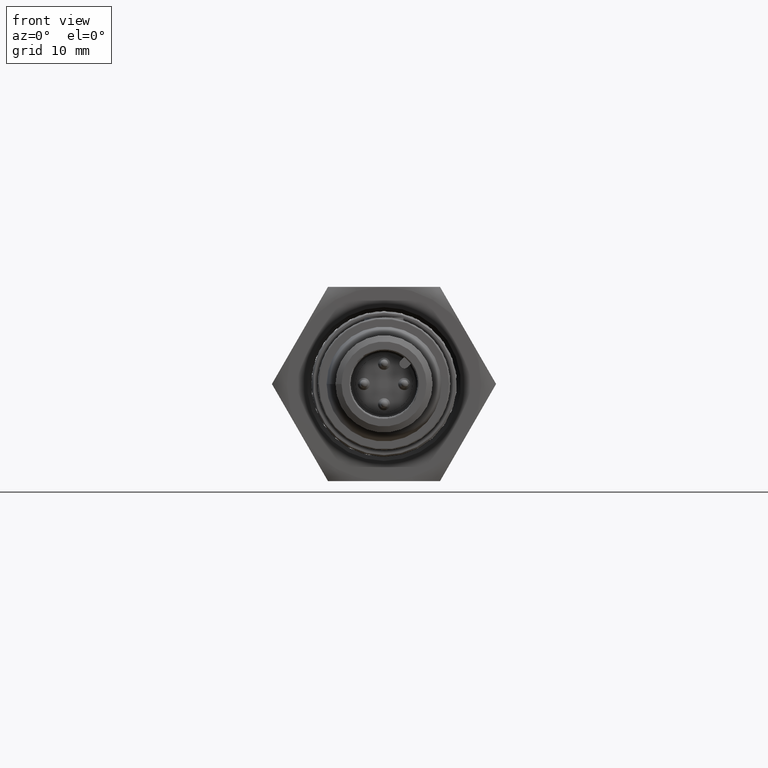
[diagram: clean part render]
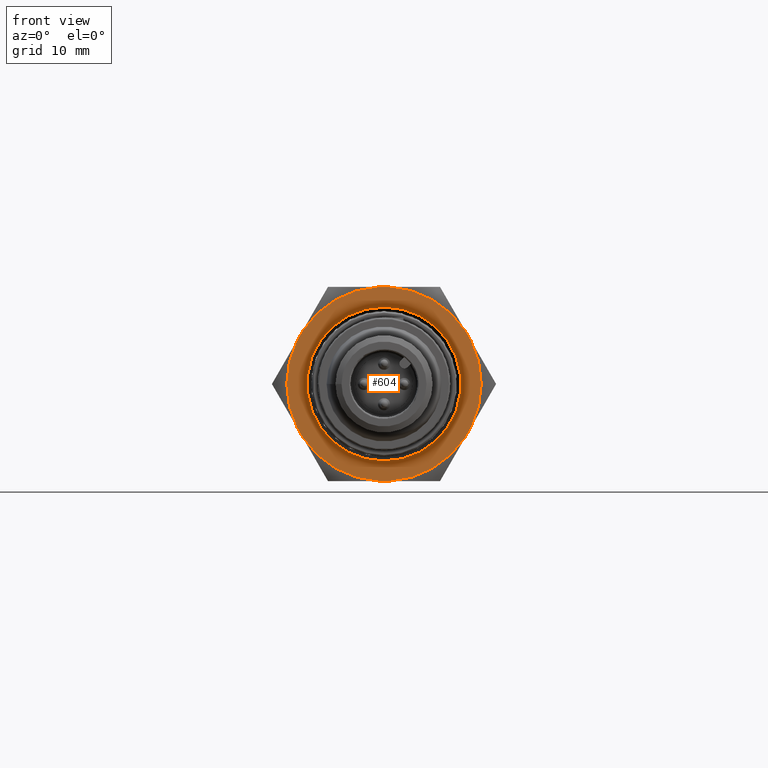
[diagram: same view with one face highlighted and labeled with its STEP entity id]
A machine part, front view. The second image highlights one B-rep face of the part: STEP entity #604.
In plain terms, the highlighted planar face has unit normal (0, -1, 0).
Its self-contained STEP definition (entity closure, byte-faithful):
#9 = DIRECTION ( 'NONE',  ( 0.000000000000000000, 0.000000000000000000, -1.000000000000000000 ) ) ;
#32 = LINE ( 'NONE', #1390, #407 ) ;
#61 = CARTESIAN_POINT ( 'NONE',  ( -0.2727639067037574971, 0.2687413502345897820, 0.4690084778756850592 ) ) ;
#62 = LINE ( 'NONE', #1418, #2949 ) ;
#166 = VERTEX_POINT ( 'NONE', #1652 ) ;
#222 = AXIS2_PLACEMENT_3D ( 'NONE', #833, #3932, #3253 ) ;
#225 = ORIENTED_EDGE ( 'NONE', *, *, #4373, .T. ) ;
#326 = DIRECTION ( 'NONE',  ( 0.000000000000000000, -1.000000000000000000, 0.000000000000000000 ) ) ;
#333 = EDGE_CURVE ( 'NONE', #3655, #2803, #62, .T. ) ;
#407 = VECTOR ( 'NONE', #3073, 39.37007874015748854 ) ;
#446 = CARTESIAN_POINT ( 'NONE',  ( -0.3963061059273504383, 0.2687413502345897820, -0.2618920459540358125 ) ) ;
#487 = VERTEX_POINT ( 'NONE', #4270 ) ;
#554 = DIRECTION ( 'NONE',  ( 0.000000000000000000, -1.000000000000000000, 0.000000000000000000 ) ) ;
#579 = CARTESIAN_POINT ( 'NONE',  ( 0.02567950825657693004, 0.2687413502345897820, 0.4690084778756850592 ) ) ;
#604 = ADVANCED_FACE ( 'NONE', ( #1841, #1173 ), #2552, .T. ) ;
#614 = VERTEX_POINT ( 'NONE', #3604 ) ;
#624 = EDGE_CURVE ( 'NONE', #2329, #3676, #3098, .T. ) ;
#651 = VERTEX_POINT ( 'NONE', #2510 ) ;
#686 = EDGE_CURVE ( 'NONE', #2803, #2834, #1945, .T. ) ;
#706 = EDGE_CURVE ( 'NONE', #2863, #2545, #2525, .T. ) ;
#754 = DIRECTION ( 'NONE',  ( 0.000000000000000000, -1.000000000000000000, 0.000000000000000000 ) ) ;
#782 = CARTESIAN_POINT ( 'NONE',  ( -0.5455278134075173258, 0.2687413502345897820, -0.003432467006205425306 ) ) ;
#784 = CARTESIAN_POINT ( 'NONE',  ( -0.4219856141839251618, 0.2687413502345897820, -0.2174138329402645620 ) ) ;
#801 = CARTESIAN_POINT ( 'NONE',  ( 0.3963061059273583209, 0.2687413502345897820, 0.2550271119416216425 ) ) ;
#806 = DIRECTION ( 'NONE',  ( 0.4999999999999998335, 0.000000000000000000, -0.8660254037844385966 ) ) ;
#833 = CARTESIAN_POINT ( 'NONE',  ( 2.648897484147870251E-15, 0.2687413502345897820, -0.003432467006205425306 ) ) ;
#854 = ORIENTED_EDGE ( 'NONE', *, *, #3328, .T. ) ;
#869 = DIRECTION ( 'NONE',  ( 0.000000000000000000, 0.000000000000000000, -1.000000000000000000 ) ) ;
#892 = CARTESIAN_POINT ( 'NONE',  ( 2.648897484147870251E-15, 0.2687413502345897820, -0.003432467006205425306 ) ) ;
#893 = ORIENTED_EDGE ( 'NONE', *, *, #686, .T. ) ;
#960 = EDGE_CURVE ( 'NONE', #2430, #2863, #1100, .T. ) ;
#1085 = EDGE_CURVE ( 'NONE', #487, #2430, #3258, .T. ) ;
#1100 = LINE ( 'NONE', #782, #3833 ) ;
#1173 = FACE_OUTER_BOUND ( 'NONE', #3949, .T. ) ;
#1214 = LINE ( 'NONE', #2908, #1898 ) ;
#1242 = VERTEX_POINT ( 'NONE', #2622 ) ;
#1258 = CARTESIAN_POINT ( 'NONE',  ( -0.02567950825657815128, 0.2687413502345897820, -0.4758734118880952879 ) ) ;
#1295 = DIRECTION ( 'NONE',  ( 0.000000000000000000, 0.000000000000000000, -1.000000000000000000 ) ) ;
#1297 = CARTESIAN_POINT ( 'NONE',  ( 0.4219856141839291586, 0.2687413502345897820, -0.2174138329402669212 ) ) ;
#1304 = ORIENTED_EDGE ( 'NONE', *, *, #1085, .T. ) ;
#1325 = ORIENTED_EDGE ( 'NONE', *, *, #2283, .T. ) ;
#1390 = CARTESIAN_POINT ( 'NONE',  ( 0.5455278134075236540, 0.2687413502345897820, -0.003432467006205287829 ) ) ;
#1414 = DIRECTION ( 'NONE',  ( 0.000000000000000000, 0.000000000000000000, -1.000000000000000000 ) ) ;
#1417 = DIRECTION ( 'NONE',  ( -0.4999999999999998335, 0.000000000000000000, -0.8660254037844385966 ) ) ;
#1418 = CARTESIAN_POINT ( 'NONE',  ( 0.2727639067037633813, 0.2687413502345897820, -0.4758734118880952879 ) ) ;
#1434 = DIRECTION ( 'NONE',  ( -1.000000000000000000, 0.000000000000000000, 0.000000000000000000 ) ) ;
#1442 = ORIENTED_EDGE ( 'NONE', *, *, #3480, .T. ) ;
#1549 = DIRECTION ( 'NONE',  ( 0.000000000000000000, -1.000000000000000000, 0.000000000000000000 ) ) ;
#1561 = AXIS2_PLACEMENT_3D ( 'NONE', #1795, #2147, #2878 ) ;
#1644 = CARTESIAN_POINT ( 'NONE',  ( 0.3963061059273575437, 0.2687413502345897820, -0.2618920459540338697 ) ) ;
#1652 = CARTESIAN_POINT ( 'NONE',  ( -0.3963061059273488840, 0.2687413502345897820, 0.2550271119416279708 ) ) ;
#1678 = AXIS2_PLACEMENT_3D ( 'NONE', #1745, #754, #3545 ) ;
#1745 = CARTESIAN_POINT ( 'NONE',  ( 2.648897484147870251E-15, 0.2687413502345897820, -0.003432467006205425306 ) ) ;
#1760 = DIRECTION ( 'NONE',  ( 0.000000000000000000, -1.000000000000000000, 0.000000000000000000 ) ) ;
#1795 = CARTESIAN_POINT ( 'NONE',  ( 2.648897484147870251E-15, 0.2687413502345897820, -0.003432467006205425306 ) ) ;
#1802 = EDGE_CURVE ( 'NONE', #166, #487, #3150, .T. ) ;
#1841 = FACE_BOUND ( 'NONE', #1896, .T. ) ;
#1853 = EDGE_CURVE ( 'NONE', #651, #651, #3977, .T. ) ;
#1896 = EDGE_LOOP ( 'NONE', ( #3459 ) ) ;
#1898 = VECTOR ( 'NONE', #2293, 39.37007874015748143 ) ;
#1945 = CIRCLE ( 'NONE', #2738, 0.4731383344701551308 ) ;
#2042 = VECTOR ( 'NONE', #1434, 39.37007874015748143 ) ;
#2110 = CIRCLE ( 'NONE', #1678, 0.4731383344701551308 ) ;
#2146 = AXIS2_PLACEMENT_3D ( 'NONE', #892, #2588, #869 ) ;
#2147 = DIRECTION ( 'NONE',  ( 0.000000000000000000, -1.000000000000000000, 0.000000000000000000 ) ) ;
#2172 = CARTESIAN_POINT ( 'NONE',  ( 2.648897484147870251E-15, 0.2687413502345897820, -0.003432467006205425306 ) ) ;
#2283 = EDGE_CURVE ( 'NONE', #614, #3655, #2110, .T. ) ;
#2293 = DIRECTION ( 'NONE',  ( 1.000000000000000000, 0.000000000000000000, 0.000000000000000000 ) ) ;
#2329 = VERTEX_POINT ( 'NONE', #801 ) ;
#2381 = ORIENTED_EDGE ( 'NONE', *, *, #1802, .T. ) ;
#2430 = VERTEX_POINT ( 'NONE', #784 ) ;
#2454 = AXIS2_PLACEMENT_3D ( 'NONE', #2172, #1549, #1295 ) ;
#2466 = ORIENTED_EDGE ( 'NONE', *, *, #624, .T. ) ;
#2510 = CARTESIAN_POINT ( 'NONE',  ( 2.648897484147870251E-15, 0.2687413502345897820, -0.3777631756676227970 ) ) ;
#2525 = CIRCLE ( 'NONE', #3393, 0.4731383344701551308 ) ;
#2545 = VERTEX_POINT ( 'NONE', #1258 ) ;
#2552 = PLANE ( 'NONE',  #222 ) ;
#2588 = DIRECTION ( 'NONE',  ( 0.000000000000000000, 1.000000000000000000, 0.000000000000000000 ) ) ;
#2598 = CARTESIAN_POINT ( 'NONE',  ( 2.648897484147870251E-15, 0.2687413502345897820, -0.003432467006205425306 ) ) ;
#2622 = CARTESIAN_POINT ( 'NONE',  ( -0.02567950825657161484, 0.2687413502345897820, 0.4690084778756850592 ) ) ;
#2646 = EDGE_CURVE ( 'NONE', #2545, #614, #1214, .T. ) ;
#2738 = AXIS2_PLACEMENT_3D ( 'NONE', #4135, #326, #9 ) ;
#2803 = VERTEX_POINT ( 'NONE', #1297 ) ;
#2834 = VERTEX_POINT ( 'NONE', #3544 ) ;
#2863 = VERTEX_POINT ( 'NONE', #446 ) ;
#2878 = DIRECTION ( 'NONE',  ( 0.000000000000000000, 0.000000000000000000, -1.000000000000000000 ) ) ;
#2903 = ORIENTED_EDGE ( 'NONE', *, *, #333, .T. ) ;
#2907 = DIRECTION ( 'NONE',  ( 0.000000000000000000, 0.000000000000000000, -1.000000000000000000 ) ) ;
#2908 = CARTESIAN_POINT ( 'NONE',  ( -0.2727639067037578857, 0.2687413502345897820, -0.4758734118880952879 ) ) ;
#2949 = VECTOR ( 'NONE', #3852, 39.37007874015748854 ) ;
#3000 = ORIENTED_EDGE ( 'NONE', *, *, #706, .T. ) ;
#3028 = VECTOR ( 'NONE', #1417, 39.37007874015748854 ) ;
#3073 = DIRECTION ( 'NONE',  ( -0.4999999999999998335, 0.000000000000000000, 0.8660254037844385966 ) ) ;
#3098 = CIRCLE ( 'NONE', #3535, 0.4731383344701551308 ) ;
#3099 = CARTESIAN_POINT ( 'NONE',  ( 2.648897484147870251E-15, 0.2687413502345897820, -0.003432467006205425306 ) ) ;
#3150 = LINE ( 'NONE', #61, #3028 ) ;
#3185 = CARTESIAN_POINT ( 'NONE',  ( 0.2727639067037629927, 0.2687413502345897820, 0.4690084778756850592 ) ) ;
#3218 = CIRCLE ( 'NONE', #1561, 0.4731383344701551308 ) ;
#3253 = DIRECTION ( 'NONE',  ( 0.000000000000000000, 0.000000000000000000, -1.000000000000000000 ) ) ;
#3258 = CIRCLE ( 'NONE', #2454, 0.4731383344701551308 ) ;
#3328 = EDGE_CURVE ( 'NONE', #2834, #2329, #32, .T. ) ;
#3383 = ORIENTED_EDGE ( 'NONE', *, *, #2646, .T. ) ;
#3393 = AXIS2_PLACEMENT_3D ( 'NONE', #3099, #1760, #1414 ) ;
#3459 = ORIENTED_EDGE ( 'NONE', *, *, #1853, .T. ) ;
#3480 = EDGE_CURVE ( 'NONE', #3676, #1242, #4252, .T. ) ;
#3535 = AXIS2_PLACEMENT_3D ( 'NONE', #2598, #554, #2907 ) ;
#3544 = CARTESIAN_POINT ( 'NONE',  ( 0.4219856141839283814, 0.2687413502345897820, 0.2105488989278574974 ) ) ;
#3545 = DIRECTION ( 'NONE',  ( 0.000000000000000000, 0.000000000000000000, -1.000000000000000000 ) ) ;
#3604 = CARTESIAN_POINT ( 'NONE',  ( 0.02567950825658346647, 0.2687413502345897820, -0.4758734118880952879 ) ) ;
#3655 = VERTEX_POINT ( 'NONE', #1644 ) ;
#3676 = VERTEX_POINT ( 'NONE', #579 ) ;
#3751 = ORIENTED_EDGE ( 'NONE', *, *, #960, .T. ) ;
#3833 = VECTOR ( 'NONE', #806, 39.37007874015748854 ) ;
#3852 = DIRECTION ( 'NONE',  ( 0.4999999999999998335, 0.000000000000000000, 0.8660254037844385966 ) ) ;
#3932 = DIRECTION ( 'NONE',  ( 0.000000000000000000, -1.000000000000000000, 0.000000000000000000 ) ) ;
#3949 = EDGE_LOOP ( 'NONE', ( #3383, #1325, #2903, #893, #854, #2466, #1442, #225, #2381, #1304, #3751, #3000 ) ) ;
#3977 = CIRCLE ( 'NONE', #2146, 0.3743307086614173773 ) ;
#4135 = CARTESIAN_POINT ( 'NONE',  ( 2.648897484147870251E-15, 0.2687413502345897820, -0.003432467006205425306 ) ) ;
#4252 = LINE ( 'NONE', #3185, #2042 ) ;
#4270 = CARTESIAN_POINT ( 'NONE',  ( -0.4219856141833039365, 0.2687413502345897820, 0.2105488989289283630 ) ) ;
#4373 = EDGE_CURVE ( 'NONE', #1242, #166, #3218, .T. ) ;